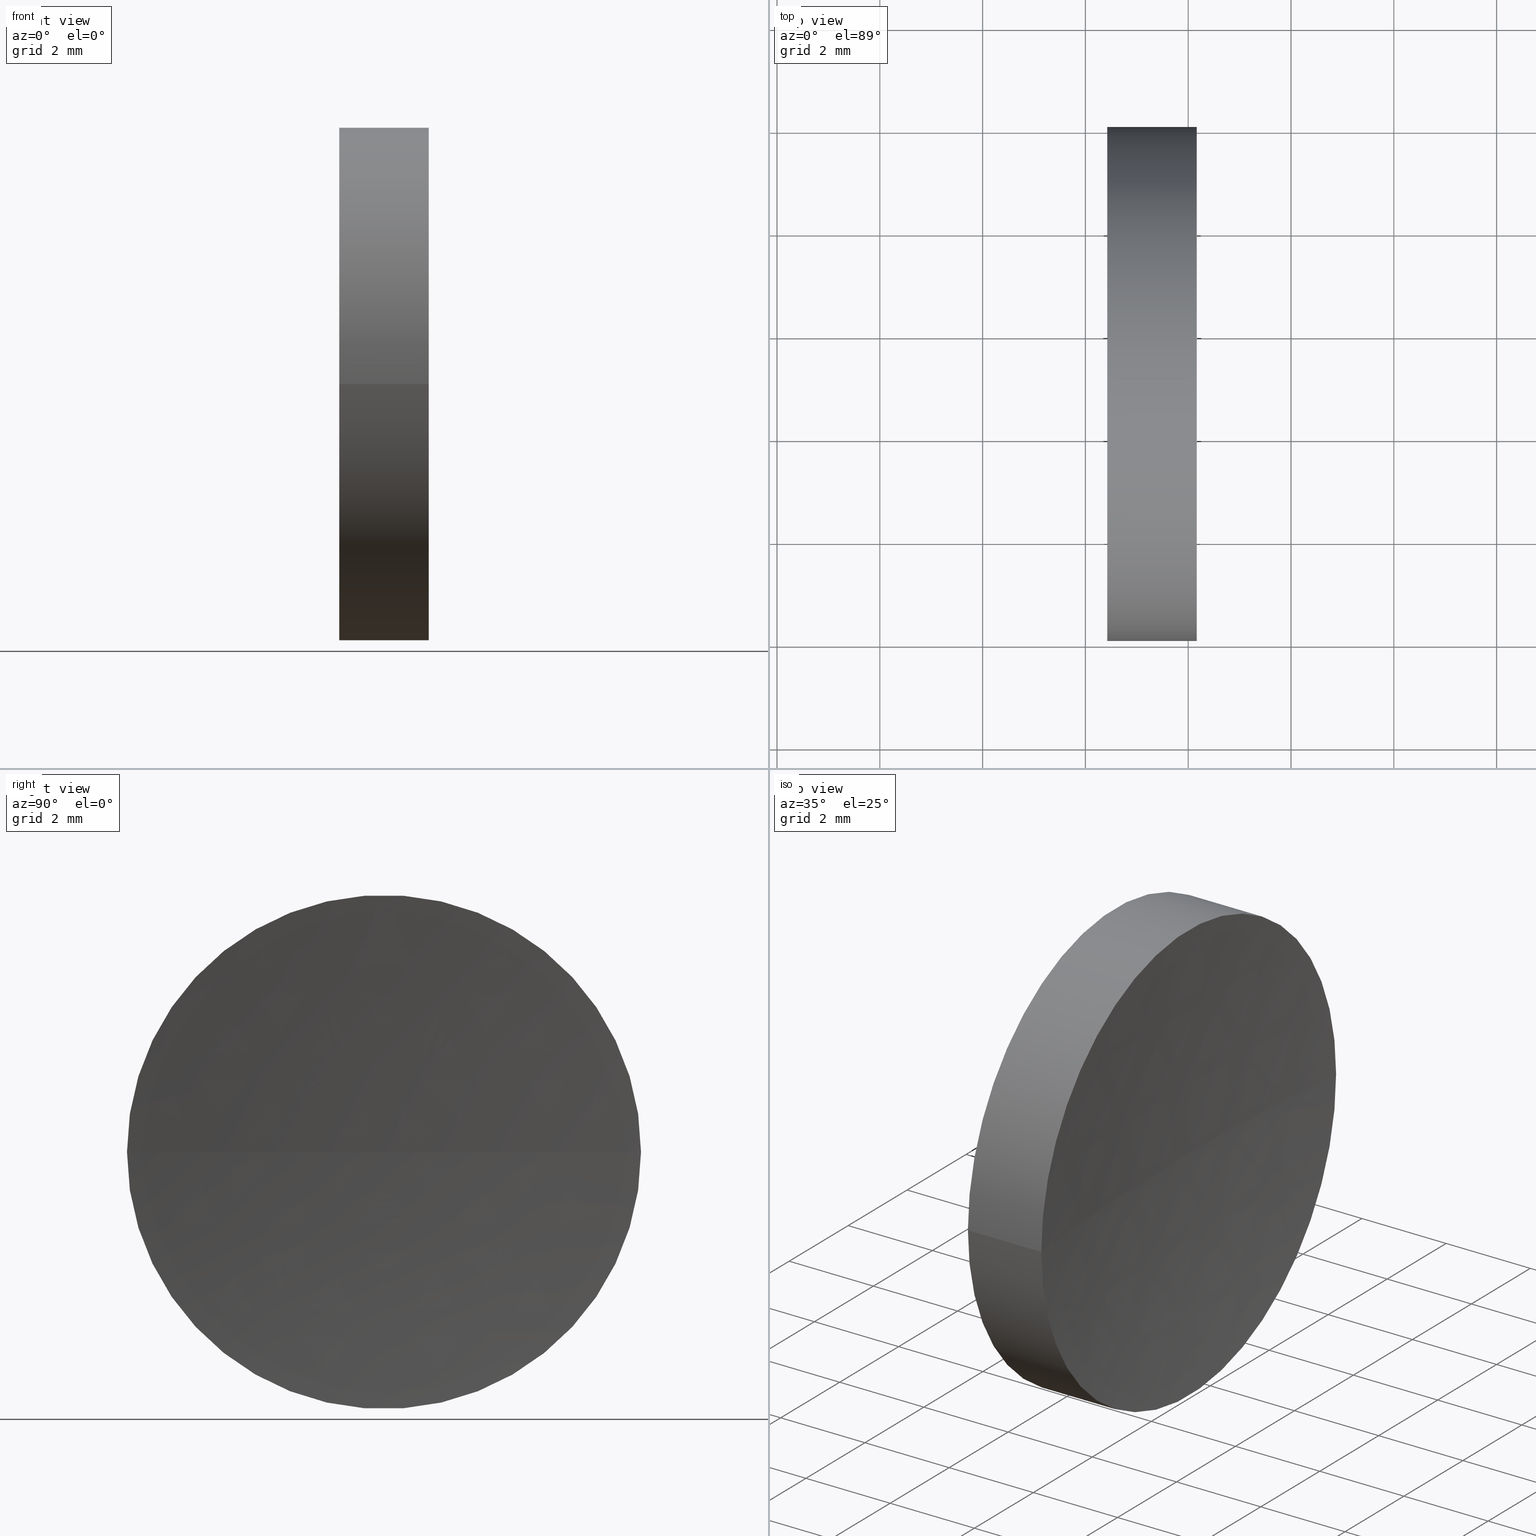
[diagram: canonical four-view strip — front | top / right | iso, engineering-drawing reading convention]
A machine part, canonical four-view strip (front | top / right | iso — engineering-drawing reading convention). The complete STEP part file that produces these views, byte-faithful:
ISO-10303-21;
HEADER;
FILE_DESCRIPTION (( 'STEP AP214' ),
    '1' );
FILE_NAME ('120138.STEP',
    '2019-06-19T07:23:54',
    ( '' ),
    ( '' ),
    'SwSTEP 2.0',
    'SolidWorks 2016',
    '' );
FILE_SCHEMA (( 'AUTOMOTIVE_DESIGN' ));
ENDSEC;

DATA;
#1 = MANIFOLD_SOLID_BREP ( '��ת1', #40 ) ;
#2 = AXIS2_PLACEMENT_3D ( 'NONE', #113, #81, #151 ) ;
#3 = CIRCLE ( 'NONE', #86, 51.64000000000000800 ) ;
#4 = VERTEX_POINT ( 'NONE', #122 ) ;
#5 = EDGE_LOOP ( 'NONE', ( #42, #80, #34, #127 ) ) ;
#6 = MECHANICAL_DESIGN_GEOMETRIC_PRESENTATION_REPRESENTATION (  '', ( #21 ), #43 ) ;
#7 = CIRCLE ( 'NONE', #102, 51.64000000000000800 ) ;
#8 = EDGE_CURVE ( 'NONE', #153, #138, #3, .T. ) ;
#9 = ORIENTED_EDGE ( 'NONE', *, *, #116, .F. ) ;
#10 = AXIS2_PLACEMENT_3D ( 'NONE', #69, #14, #95 ) ;
#11 = DIRECTION ( 'NONE',  ( 0.0000000000000000000, -0.0000000000000000000, -1.000000000000000000 ) ) ;
#12 = APPLICATION_PROTOCOL_DEFINITION ( 'draft international standard', 'automotive_design', 1998, #82 ) ;
#13 = CARTESIAN_POINT ( 'NONE',  ( 21.50597511808246100, 13.03112609140304200, 0.0000000000000000000 ) ) ;
#14 = DIRECTION ( 'NONE',  ( 0.0000000000000000000, 0.0000000000000000000, 1.000000000000000000 ) ) ;
#15 = FACE_OUTER_BOUND ( 'NONE', #5, .T. ) ;
#16 =( GEOMETRIC_REPRESENTATION_CONTEXT ( 3 ) GLOBAL_UNCERTAINTY_ASSIGNED_CONTEXT ( ( #114 ) ) GLOBAL_UNIT_ASSIGNED_CONTEXT ( ( #36, #17, #64 ) ) REPRESENTATION_CONTEXT ( 'NONE', 'WORKASPACE' ) );
#17 =( NAMED_UNIT ( * ) PLANE_ANGLE_UNIT ( ) SI_UNIT ( $, .RADIAN. ) );
#18 = CIRCLE ( 'NONE', #2, 5.000000000000000900 ) ;
#19 = EDGE_CURVE ( 'NONE', #133, #4, #156, .T. ) ;
#20 = EDGE_LOOP ( 'NONE', ( #48, #97, #32 ) ) ;
#21 = STYLED_ITEM ( 'NONE', ( #123 ), #75 ) ;
#22 = ADVANCED_FACE ( 'NONE', ( #15 ), #103, .T. ) ;
#23 = DIRECTION ( 'NONE',  ( 1.000000000000000000, -3.159171411554934600E-016, 0.0000000000000000000 ) ) ;
#24 = FILL_AREA_STYLE ('',( #132 ) ) ;
#25 = ADVANCED_FACE ( 'NONE', ( #39 ), #41, .T. ) ;
#26 = CARTESIAN_POINT ( 'NONE',  ( 24.16686247112158600, 8.031126091403075800, 0.0000000000000000000 ) ) ;
#27 = APPLICATION_CONTEXT ( 'automotive_design' ) ;
#28 = DIRECTION ( 'NONE',  ( -1.000000000000000000, 3.159171411554934600E-016, -0.0000000000000000000 ) ) ;
#29 = MECHANICAL_DESIGN_GEOMETRIC_PRESENTATION_REPRESENTATION (  '', ( #106 ), #38 ) ;
#30 = DIRECTION ( 'NONE',  ( -1.000000000000000000, 3.159171411554934600E-016, -0.0000000000000000000 ) ) ;
#31 = ORIENTED_EDGE ( 'NONE', *, *, #152, .T. ) ;
#32 = ORIENTED_EDGE ( 'NONE', *, *, #8, .F. ) ;
#33 = DIRECTION ( 'NONE',  ( -1.000000000000000000, 3.159171411554934600E-016, -0.0000000000000000000 ) ) ;
#34 = ORIENTED_EDGE ( 'NONE', *, *, #105, .T. ) ;
#35 = PRODUCT_RELATED_PRODUCT_CATEGORY ( 'part', '', ( #65 ) ) ;
#36 =( LENGTH_UNIT ( ) NAMED_UNIT ( * ) SI_UNIT ( .MILLI., .METRE. ) );
#37 = CARTESIAN_POINT ( 'NONE',  ( 21.50597511808246100, 8.031126091403040200, 0.0000000000000000000 ) ) ;
#38 =( GEOMETRIC_REPRESENTATION_CONTEXT ( 3 ) GLOBAL_UNCERTAINTY_ASSIGNED_CONTEXT ( ( #101 ) ) GLOBAL_UNIT_ASSIGNED_CONTEXT ( ( #146, #63, #120 ) ) REPRESENTATION_CONTEXT ( 'NONE', 'WORKASPACE' ) );
#39 = FACE_OUTER_BOUND ( 'NONE', #121, .T. ) ;
#40 = CLOSED_SHELL ( 'NONE', ( #25, #76, #119, #22, #52 ) ) ;
#41 = CYLINDRICAL_SURFACE ( 'NONE', #71, 5.000000000000000900 ) ;
#42 = ORIENTED_EDGE ( 'NONE', *, *, #73, .F. ) ;
#43 =( GEOMETRIC_REPRESENTATION_CONTEXT ( 3 ) GLOBAL_UNCERTAINTY_ASSIGNED_CONTEXT ( ( #99 ) ) GLOBAL_UNIT_ASSIGNED_CONTEXT ( ( #136, #79, #54 ) ) REPRESENTATION_CONTEXT ( 'NONE', 'WORKASPACE' ) );
#44 = LINE ( 'NONE', #112, #142 ) ;
#45 = COLOUR_RGB ( '',1.000000000000000000, 1.000000000000000000, 1.000000000000000000 ) ;
#46 = DIRECTION ( 'NONE',  ( -1.000000000000000000, 3.159171411554934600E-016, -0.0000000000000000000 ) ) ;
#47 = DIRECTION ( 'NONE',  ( -3.868869157118576300E-032, -1.224646799147353200E-016, 1.000000000000000000 ) ) ;
#48 = ORIENTED_EDGE ( 'NONE', *, *, #87, .F. ) ;
#49 = PRODUCT_DEFINITION ( 'δ֪', '', #155, #107 ) ;
#50 = SHAPE_DEFINITION_REPRESENTATION ( #78, #75 ) ;
#51 = ORIENTED_EDGE ( 'NONE', *, *, #94, .T. ) ;
#52 = ADVANCED_FACE ( 'NONE', ( #163 ), #91, .F. ) ;
#53 = DIRECTION ( 'NONE',  ( -1.000000000000000000, 3.159171411554934600E-016, -0.0000000000000000000 ) ) ;
#54 =( NAMED_UNIT ( * ) SI_UNIT ( $, .STERADIAN. ) SOLID_ANGLE_UNIT ( ) );
#55 = DIRECTION ( 'NONE',  ( -2.687410497252992700E-016, -1.000000000000000000, 0.0000000000000000000 ) ) ;
#56 = PRESENTATION_LAYER_ASSIGNMENT (  '', '', ( #21 ) ) ;
#57 = CARTESIAN_POINT ( 'NONE',  ( 75.56423205362065700, 13.03112609140303500, 0.0000000000000000000 ) ) ;
#58 = SURFACE_STYLE_FILL_AREA ( #162 ) ;
#59 = AXIS2_PLACEMENT_3D ( 'NONE', #96, #28, #164 ) ;
#60 = ORIENTED_EDGE ( 'NONE', *, *, #19, .T. ) ;
#61 = AXIS2_PLACEMENT_3D ( 'NONE', #57, #150, #98 ) ;
#62 = CARTESIAN_POINT ( 'NONE',  ( 22.42423205362066000, 13.03112609140304200, 0.0000000000000000000 ) ) ;
#63 =( NAMED_UNIT ( * ) PLANE_ANGLE_UNIT ( ) SI_UNIT ( $, .RADIAN. ) );
#64 =( NAMED_UNIT ( * ) SI_UNIT ( $, .STERADIAN. ) SOLID_ANGLE_UNIT ( ) );
#65 = PRODUCT ( '120138', '120138', '', ( #67 ) ) ;
#66 = CARTESIAN_POINT ( 'NONE',  ( 23.92423205362065300, 13.03112609140304900, 0.0000000000000000000 ) ) ;
#67 = PRODUCT_CONTEXT ( 'NONE', #82, 'mechanical' ) ;
#68 = DIRECTION ( 'NONE',  ( 0.0000000000000000000, 0.0000000000000000000, 1.000000000000000000 ) ) ;
#69 = CARTESIAN_POINT ( 'NONE',  ( 0.0000000000000000000, 0.0000000000000000000, 0.0000000000000000000 ) ) ;
#70 = SURFACE_STYLE_FILL_AREA ( #24 ) ;
#71 = AXIS2_PLACEMENT_3D ( 'NONE', #108, #33, #131 ) ;
#72 = EDGE_LOOP ( 'NONE', ( #51, #60 ) ) ;
#73 = EDGE_CURVE ( 'NONE', #88, #133, #44, .T. ) ;
#74 = CARTESIAN_POINT ( 'NONE',  ( 75.56423205362065700, 13.03112609140303500, 0.0000000000000000000 ) ) ;
#75 = ADVANCED_BREP_SHAPE_REPRESENTATION ( '120138', ( #1, #10 ), #16 ) ;
#76 = ADVANCED_FACE ( 'NONE', ( #135 ), #110, .F. ) ;
#77 = SURFACE_STYLE_USAGE ( .BOTH. , #83 ) ;
#78 = PRODUCT_DEFINITION_SHAPE ( 'NONE', 'NONE',  #49 ) ;
#79 =( NAMED_UNIT ( * ) PLANE_ANGLE_UNIT ( ) SI_UNIT ( $, .RADIAN. ) );
#80 = ORIENTED_EDGE ( 'NONE', *, *, #87, .T. ) ;
#81 = DIRECTION ( 'NONE',  ( -1.000000000000000000, 3.159171411554934600E-016, -0.0000000000000000000 ) ) ;
#82 = APPLICATION_CONTEXT ( 'automotive_design' ) ;
#83 = SURFACE_SIDE_STYLE ('',( #58 ) ) ;
#84 = DIRECTION ( 'NONE',  ( 0.0000000000000000000, -1.000000000000000000, -1.224646799147353200E-016 ) ) ;
#85 = AXIS2_PLACEMENT_3D ( 'NONE', #62, #23, #159 ) ;
#86 = AXIS2_PLACEMENT_3D ( 'NONE', #74, #11, #144 ) ;
#87 = EDGE_CURVE ( 'NONE', #88, #153, #125, .T. ) ;
#88 = VERTEX_POINT ( 'NONE', #139 ) ;
#89 = AXIS2_PLACEMENT_3D ( 'NONE', #126, #68, #55 ) ;
#90 = DIRECTION ( 'NONE',  ( 0.0000000000000000000, -1.000000000000000000, 0.0000000000000000000 ) ) ;
#91 = PLANE ( 'NONE',  #85 ) ;
#92 = AXIS2_PLACEMENT_3D ( 'NONE', #13, #134, #149 ) ;
#93 = VECTOR ( 'NONE', #140, 1000.000000000000000 ) ;
#94 = EDGE_CURVE ( 'NONE', #4, #133, #18, .T. ) ;
#95 = DIRECTION ( 'NONE',  ( 1.000000000000000000, 0.0000000000000000000, 0.0000000000000000000 ) ) ;
#96 = CARTESIAN_POINT ( 'NONE',  ( 24.16686247112159000, 13.03112609140304200, 0.0000000000000000000 ) ) ;
#97 = ORIENTED_EDGE ( 'NONE', *, *, #116, .T. ) ;
#98 = DIRECTION ( 'NONE',  ( -2.687410497252992700E-016, -1.000000000000000000, 0.0000000000000000000 ) ) ;
#99 = UNCERTAINTY_MEASURE_WITH_UNIT (LENGTH_MEASURE( 1.000000000000000100E-005 ), #136, 'distance_accuracy_value', 'NONE');
#100 = CIRCLE ( 'NONE', #59, 5.000000000000000900 ) ;
#101 = UNCERTAINTY_MEASURE_WITH_UNIT (LENGTH_MEASURE( 1.000000000000000100E-005 ), #146, 'distance_accuracy_value', 'NONE');
#102 = AXIS2_PLACEMENT_3D ( 'NONE', #128, #47, #84 ) ;
#103 = CYLINDRICAL_SURFACE ( 'NONE', #92, 5.000000000000000900 ) ;
#104 = EDGE_LOOP ( 'NONE', ( #9, #157, #115 ) ) ;
#105 = EDGE_CURVE ( 'NONE', #153, #4, #117, .T. ) ;
#106 = STYLED_ITEM ( 'NONE', ( #129 ), #1 ) ;
#107 = PRODUCT_DEFINITION_CONTEXT ( 'detailed design', #27, 'design' ) ;
#108 = CARTESIAN_POINT ( 'NONE',  ( 21.50597511808246100, 13.03112609140304200, 0.0000000000000000000 ) ) ;
#109 = AXIS2_PLACEMENT_3D ( 'NONE', #165, #46, #124 ) ;
#110 = SPHERICAL_SURFACE ( 'NONE', #89, 51.64000000000000800 ) ;
#111 = CARTESIAN_POINT ( 'NONE',  ( 22.42423205362066000, 13.03112609140304200, 0.0000000000000000000 ) ) ;
#112 = CARTESIAN_POINT ( 'NONE',  ( 21.50597511808246100, 18.03112609140304200, 6.123233995736767300E-016 ) ) ;
#113 = CARTESIAN_POINT ( 'NONE',  ( 22.42423205362066000, 13.03112609140304200, 0.0000000000000000000 ) ) ;
#114 = UNCERTAINTY_MEASURE_WITH_UNIT (LENGTH_MEASURE( 1.000000000000000100E-005 ), #36, 'distance_accuracy_value', 'NONE');
#115 = ORIENTED_EDGE ( 'NONE', *, *, #8, .T. ) ;
#116 = EDGE_CURVE ( 'NONE', #88, #138, #7, .T. ) ;
#117 = LINE ( 'NONE', #37, #93 ) ;
#118 = ORIENTED_EDGE ( 'NONE', *, *, #105, .F. ) ;
#119 = ADVANCED_FACE ( 'NONE', ( #130 ), #141, .F. ) ;
#120 =( NAMED_UNIT ( * ) SI_UNIT ( $, .STERADIAN. ) SOLID_ANGLE_UNIT ( ) );
#121 = EDGE_LOOP ( 'NONE', ( #31, #147, #154, #118 ) ) ;
#122 = CARTESIAN_POINT ( 'NONE',  ( 22.42423205362066000, 8.031126091403040200, 0.0000000000000000000 ) ) ;
#123 = PRESENTATION_STYLE_ASSIGNMENT (( #77 ) ) ;
#124 = DIRECTION ( 'NONE',  ( 0.0000000000000000000, -1.000000000000000000, 0.0000000000000000000 ) ) ;
#125 = CIRCLE ( 'NONE', #109, 5.000000000000000900 ) ;
#126 = CARTESIAN_POINT ( 'NONE',  ( 75.56423205362065700, 13.03112609140303500, 0.0000000000000000000 ) ) ;
#127 = ORIENTED_EDGE ( 'NONE', *, *, #19, .F. ) ;
#128 = CARTESIAN_POINT ( 'NONE',  ( 75.56423205362065700, 13.03112609140303500, 0.0000000000000000000 ) ) ;
#129 = PRESENTATION_STYLE_ASSIGNMENT (( #158 ) ) ;
#130 = FACE_OUTER_BOUND ( 'NONE', #104, .T. ) ;
#131 = DIRECTION ( 'NONE',  ( 0.0000000000000000000, -1.000000000000000000, 0.0000000000000000000 ) ) ;
#132 = FILL_AREA_STYLE_COLOUR ( '', #45 ) ;
#133 = VERTEX_POINT ( 'NONE', #137 ) ;
#134 = DIRECTION ( 'NONE',  ( -1.000000000000000000, 3.159171411554934600E-016, -0.0000000000000000000 ) ) ;
#135 = FACE_OUTER_BOUND ( 'NONE', #20, .T. ) ;
#136 =( LENGTH_UNIT ( ) NAMED_UNIT ( * ) SI_UNIT ( .MILLI., .METRE. ) );
#137 = CARTESIAN_POINT ( 'NONE',  ( 22.42423205362066000, 18.03112609140304200, 6.123233995736767300E-016 ) ) ;
#138 = VERTEX_POINT ( 'NONE', #66 ) ;
#139 = CARTESIAN_POINT ( 'NONE',  ( 24.16686247112158600, 18.03112609140301700, 6.123233995736725900E-016 ) ) ;
#140 = DIRECTION ( 'NONE',  ( -1.000000000000000000, 3.159171411554934600E-016, -0.0000000000000000000 ) ) ;
#141 = SPHERICAL_SURFACE ( 'NONE', #61, 51.64000000000000800 ) ;
#142 = VECTOR ( 'NONE', #30, 1000.000000000000000 ) ;
#143 = SURFACE_SIDE_STYLE ('',( #70 ) ) ;
#144 = DIRECTION ( 'NONE',  ( -1.000000000000000000, 0.0000000000000000000, 0.0000000000000000000 ) ) ;
#145 = AXIS2_PLACEMENT_3D ( 'NONE', #111, #53, #90 ) ;
#146 =( LENGTH_UNIT ( ) NAMED_UNIT ( * ) SI_UNIT ( .MILLI., .METRE. ) );
#147 = ORIENTED_EDGE ( 'NONE', *, *, #73, .T. ) ;
#148 = FILL_AREA_STYLE_COLOUR ( '', #161 ) ;
#149 = DIRECTION ( 'NONE',  ( 0.0000000000000000000, -1.000000000000000000, 0.0000000000000000000 ) ) ;
#150 = DIRECTION ( 'NONE',  ( 0.0000000000000000000, 0.0000000000000000000, 1.000000000000000000 ) ) ;
#151 = DIRECTION ( 'NONE',  ( 0.0000000000000000000, -1.000000000000000000, 0.0000000000000000000 ) ) ;
#152 = EDGE_CURVE ( 'NONE', #153, #88, #100, .T. ) ;
#153 = VERTEX_POINT ( 'NONE', #26 ) ;
#154 = ORIENTED_EDGE ( 'NONE', *, *, #94, .F. ) ;
#155 = PRODUCT_DEFINITION_FORMATION_WITH_SPECIFIED_SOURCE ( '�κ�', '', #65, .NOT_KNOWN. ) ;
#156 = CIRCLE ( 'NONE', #145, 5.000000000000000900 ) ;
#157 = ORIENTED_EDGE ( 'NONE', *, *, #152, .F. ) ;
#158 = SURFACE_STYLE_USAGE ( .BOTH. , #143 ) ;
#159 = DIRECTION ( 'NONE',  ( 3.159171411554934600E-016, 1.000000000000000000, 0.0000000000000000000 ) ) ;
#160 = APPLICATION_PROTOCOL_DEFINITION ( 'draft international standard', 'automotive_design', 1998, #27 ) ;
#161 = COLOUR_RGB ( '',1.000000000000000000, 1.000000000000000000, 1.000000000000000000 ) ;
#162 = FILL_AREA_STYLE ('',( #148 ) ) ;
#163 = FACE_OUTER_BOUND ( 'NONE', #72, .T. ) ;
#164 = DIRECTION ( 'NONE',  ( 0.0000000000000000000, -1.000000000000000000, 0.0000000000000000000 ) ) ;
#165 = CARTESIAN_POINT ( 'NONE',  ( 24.16686247112159000, 13.03112609140304200, 0.0000000000000000000 ) ) ;
#166 = PRESENTATION_LAYER_ASSIGNMENT (  '', '', ( #106 ) ) ;
ENDSEC;
END-ISO-10303-21;
